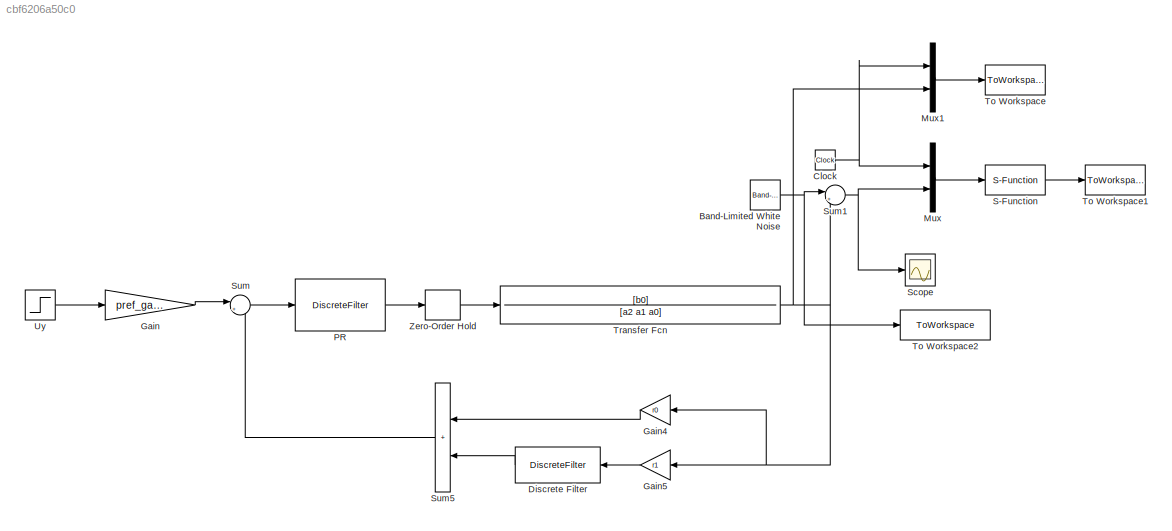
MODEL slx_cbf6206a50c0
KIND model
CONFIG AbsTol = auto
CONFIG EnableMultiTasking = off
CONFIG FixedStep = Tq
CONFIG MaxStep = auto
CONFIG MinStep = auto
CONFIG RelTol = 1e-3
CONFIG SampleTimeConstraint = Unconstrained
CONFIG SolverName = ode8
CONFIG StartTime = 0.0
CONFIG StopTime = 0.25
BLOCK [Reference] Band-Limited White Noise  REF=simulink/Sources/Band-Limited
White Noise
  Ports = [0, 1]
  SourceBlock = simulink/Sources/Band-Limited\nWhite Noise
  SourceProductBaseCode = SL
  SourceType = Band-Limited White Noise.
BLOCK [Clock] Clock
  Decimation = 1
BLOCK [DiscreteFilter] Discrete Filter
  Denominator = [Tq]
  InputPortMap = u0
  Numerator = [1 -1]
  Ports = [1, 1]
  SampleTime = Tq
BLOCK [Gain] Gain
  Gain = pref_gain
BLOCK [Gain] Gain4
  Gain = r0
  SampleTime = Tq
BLOCK [Gain] Gain5
  Gain = r1
  SampleTime = Tq
BLOCK [Mux] Mux
  DisplayOption = bar
  Inputs = 2
  Ports = [2, 1]
BLOCK [Mux] Mux1
  DisplayOption = bar
  Inputs = 2
  Ports = [2, 1]
BLOCK [DiscreteFilter] PR
  Denominator = [c0]
  InputPortMap = u0
  Ports = [1, 1]
  SampleTime = Tq
BLOCK [S-Function] S-Function
  EnableBusSupport = off
  FunctionName = decimate
  Parameters = Tq,dec_factor,Uy
  Ports = [1, 1]
  SFcnIsStateOwnerBlock = off
  SFunctionDeploymentMode = off
BLOCK [Scope] Scope
  Floating = off
  NumInputPorts = 1
  Ports = [1]
  ScopeSpecificationString = Simulink.scopes.TimeScopeBlockCfg('CurrentConfiguration', extmgr.ConfigurationSet(extmgr.Configuration('Core','General UI',true),extmgr.Configuration('Core','Source UI',true),extmgr.Configuration('Sources','WiredSimulink',true,'DataLoggingSaveFormat','StructureWithTime','DataLoggingLimitDataPoints',true,'DataLoggingDecimation','1','DataLoggingDecimateData',true),extmgr.Configuration('Visuals','Tim...<+1645ch>
BLOCK [Sum] Sum
  Inputs = |+-
  Ports = [2, 1]
BLOCK [Sum] Sum1
  Inputs = |++
  Ports = [2, 1]
BLOCK [Sum] Sum5
  IconShape = rectangular
  Ports = [2, 1]
  SampleTime = Tq
BLOCK [ToWorkspace] To Workspace
  MaxDataPoints = inf
  Ports = [1]
  SampleTime = Tq
  VariableName = simout
BLOCK [ToWorkspace] To Workspace1
  Decimation = dec_factor
  MaxDataPoints = inf
  Ports = [1]
  SampleTime = Tq
  VariableName = decimated
BLOCK [ToWorkspace] To Workspace2
  MaxDataPoints = inf
  Ports = [1]
  SampleTime = Tq
  VariableName = noisy_signal
BLOCK [TransferFcn] Transfer Fcn
  Denominator = [a2 a1 a0]
  Numerator = [b0]
BLOCK [Step] Uy
  After = Uy
  SampleTime = 0
  Time = 0
BLOCK [ZeroOrderHold] Zero-Order Hold
  SampleTime = Tq
NET Band-Limited White Noise:1 -> Sum1:1, To Workspace2:1
NET Clock:1 -> Mux1:1, Mux:1
LINE Discrete Filter:1 -> Sum5:2
LINE Gain4:1 -> Sum5:1
LINE Gain5:1 -> Discrete Filter:1
LINE Gain:1 -> Sum:1
LINE Mux1:1 -> To Workspace:1
LINE Mux:1 -> S-Function:1
LINE PR:1 -> Zero-Order Hold:1
LINE S-Function:1 -> To Workspace1:1
NET Sum1:1 -> Mux:2, Scope:1
LINE Sum5:1 -> Sum:2
LINE Sum:1 -> PR:1
NET Transfer Fcn:1 -> Gain4:1, Gain5:1, Mux1:2, Sum1:2
LINE Uy:1 -> Gain:1
LINE Zero-Order Hold:1 -> Transfer Fcn:1
note: NET lines group one-source signal fan-out (src -> all destinations, sorted); 1:1 wires keep LINE
